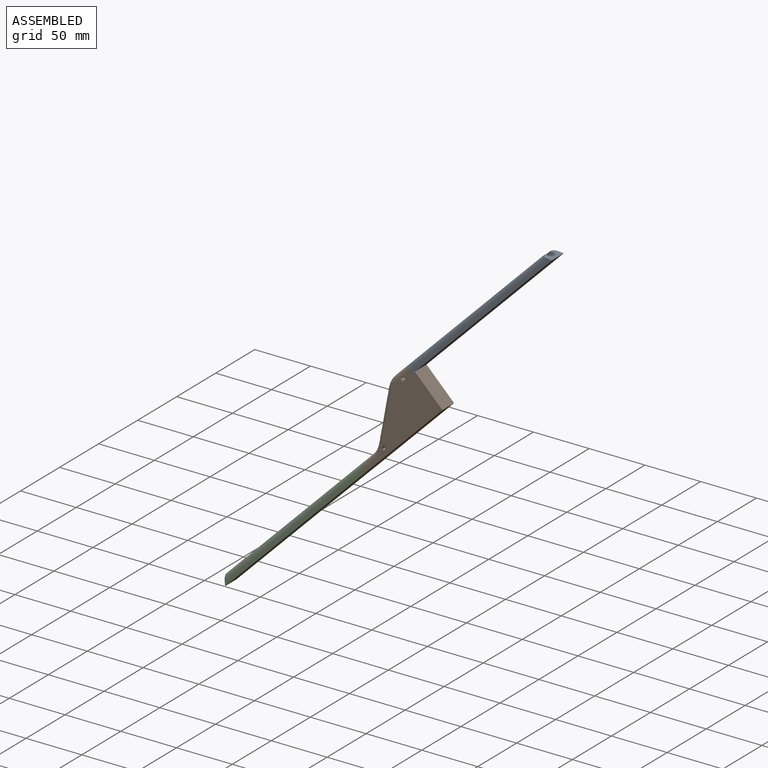
[diagram: assembled view]
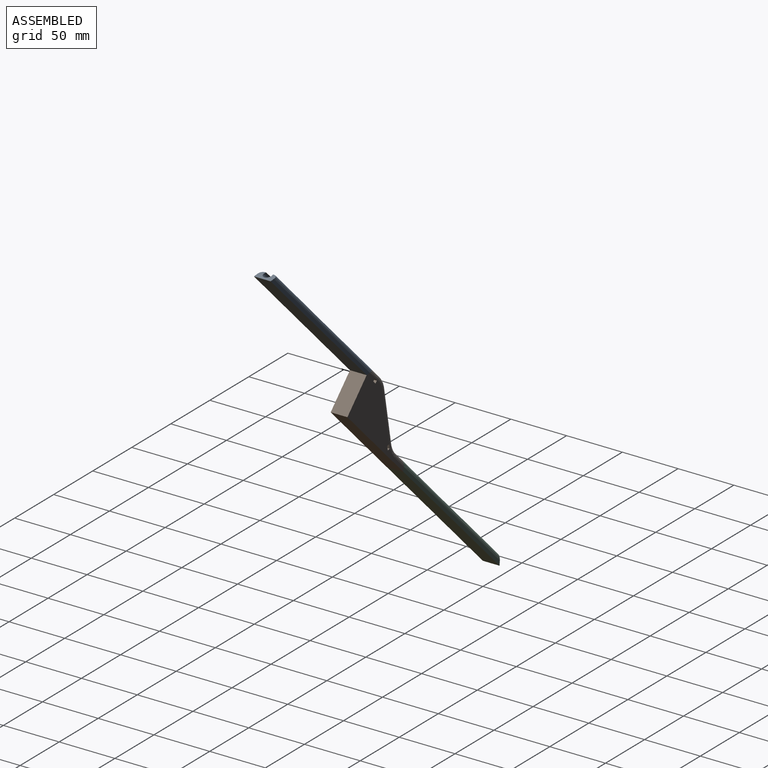
[diagram: assembled view, second angle]
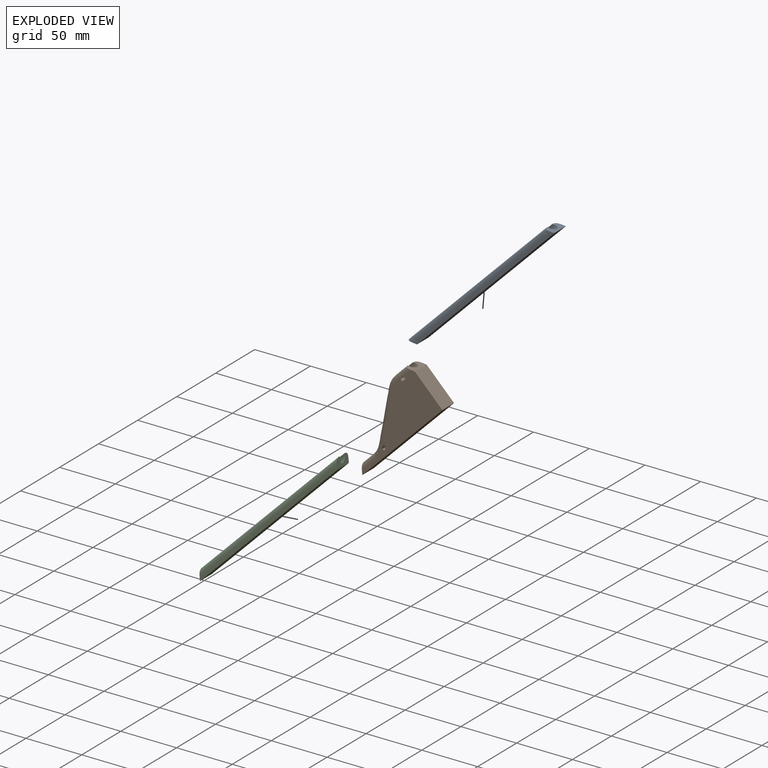
[diagram: exploded view]
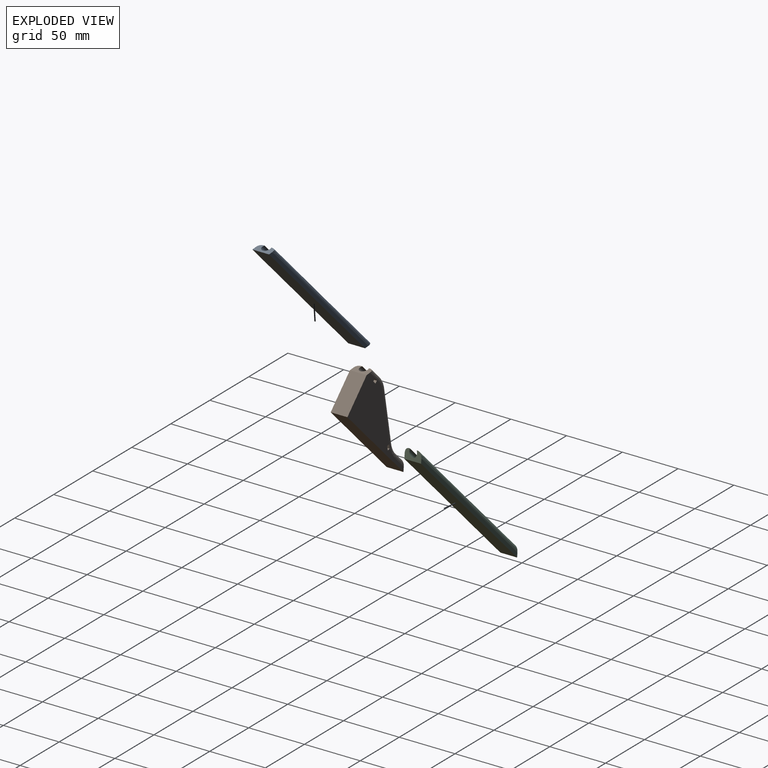
[diagram: exploded view, second angle]
ASSEMBLY  parts=3 mates=2
PART A: 10 faces, bbox 195.1x15x7.2 mm
  f0: plane 174x0.5mm, normal (0,0,1), area 86.6mm2, adj f5,f6,f7,f8
  f1: plane 176.64x3.15mm, normal (0,1,0), area 548.1mm2, adj f4,f6,f7,f9
  f2: plane 176.64x3.15mm, normal (0,-1,0), area 548.1mm2, adj f4,f6,f7,f8
  f3: plane 174x0.5mm, normal (0,0,1), area 86.6mm2, adj f5,f6,f7,f9
  f4: plane 174x15mm, normal (0,0,-1), area 2610mm2, adj f1,f2,f6,f7
  f5: cylinder r=3.45mm len=178.34mm, axis (-1,0,0), area 2504.5mm2, adj f0,f3,f6,f7
  f6: plane 15x7.15mm, normal (-0.77,0,-0.64), area 94mm2, adj f0,f1,f2,f3,f4,f5,f8,f9
  f7: plane 15x7.15mm, normal (0.77,0,0.64), area 94mm2, adj f0,f1,f2,f3,f4,f5,f8,f9
  f8: bspline ~195.09x4mm, area 1129.8mm2, adj f0,f2,f6,f7
  f9: bspline ~195.09x4mm, area 1129.8mm2, adj f1,f3,f6,f7
PART B: 41 faces, bbox 103.3x16.7x46.4 mm
  f0: plane 101.63x38.1mm, normal (0,-1,0), area 2050.8mm2, adj f7,f8,f19,f20,f26,f27,f28,f29
  f1: plane 101.63x38.1mm, normal (0,1,0), area 2050.8mm2, adj f7,f8,f19,f20,f21,f22,f23,f24
  f2: cylinder r=3.45mm len=17.53mm, axis (-1,0,0), area 212.2mm2, adj f5,f6,f9,f19,f37,f38,f39,f40
  f3: cylinder r=3.45mm len=43.49mm, axis (-0.82,0,-0.57), area 699.4mm2, adj f4,f6,f11,f13,f16,f18,f32,f34
  f4: torus R=19.5mm, axis (0,1,0), area 176.8mm2, adj f3,f10,f11,f18,f33,f34,f35
  f5: plane 13.88x0.51mm, normal (0,0,1), area 6.9mm2, adj f2,f6,f15,f19,f21
  f6: torus R=20.5mm, axis (0,-1,0), area 167.1mm2, adj f2,f3,f5,f9,f13,f14,f15,f16
  f7: plane 34.93x15mm, normal (1,0,0), area 523.9mm2, adj f0,f1,f8,f19
  f8: plane 101.6x15mm, normal (0,0,-1), area 1524mm2, adj f0,f1,f7,f20
  f9: plane 13.89x0.51mm, normal (0,0,1), area 6.9mm2, adj f2,f6,f14,f19,f26
  f10: cylinder r=3.45mm len=17.49mm, axis (-1,0,0), area 225.8mm2, adj f4,f11,f12,f17,f18,f20
  f11: cylinder r=20mm len=11.32mm, axis (0,-1,0), area 5.9mm2, adj f3,f4,f10,f12,f13,f29
  f12: plane 12.44x0.47mm, normal (0,0,1), area 5.8mm2, adj f10,f11,f20,f30
  f13: plane 40.65x27.91mm, normal (-0.57,0,0.82), area 24.6mm2, adj f3,f6,f11,f14,f28
  f14: cylinder r=20mm len=11.32mm, axis (0,-1,0), area 6.1mm2, adj f6,f9,f13,f27
  f15: cylinder r=20mm len=11.32mm, axis (0,-1,0), area 6.1mm2, adj f5,f6,f16,f22
  f16: plane 40.65x27.91mm, normal (-0.57,0,0.82), area 24.6mm2, adj f3,f6,f15,f18,f23
  f17: plane 12.44x0.47mm, normal (0,0,1), area 5.8mm2, adj f10,f18,f20,f25
  f18: cylinder r=20mm len=11.32mm, axis (0,-1,0), area 5.9mm2, adj f3,f4,f10,f16,f17,f24
  f19: plane 16.68x8.83mm, normal (0.77,0,0.64), area 94mm2, adj f0,f1,f2,f5,f7,f9,f21,f26
  f20: plane 16.68x8.83mm, normal (-0.77,0,0.64), area 94.4mm2, adj f0,f1,f8,f10,f12,f17,f25,f30
  f21: bspline ~18.1x4mm, area 101mm2, adj f1,f5,f19,f22
  f22: bspline ~11.32x6.81mm, area 72.8mm2, adj f1,f15,f21,f23
  f23: bspline ~42.91x31.2mm, area 320.1mm2, adj f1,f16,f22,f24
  f24: bspline ~13.58x7.51mm, area 83.4mm2, adj f1,f18,f23,f25
  f25: bspline ~16.59x4mm, area 91.7mm2, adj f1,f17,f20,f24
  f26: bspline ~18.1x4mm, area 101mm2, adj f0,f9,f19,f27
  f27: bspline ~11.32x6.81mm, area 72.8mm2, adj f0,f14,f26,f28
  f28: bspline ~42.91x31.2mm, area 320.1mm2, adj f0,f13,f27,f29
  f29: bspline ~13.58x7.51mm, area 83.4mm2, adj f0,f11,f28,f30
  f30: bspline ~16.59x4mm, area 91.7mm2, adj f0,f12,f20,f29
  f31: plane 15x3.32mm, normal (-0.56,0,0.83), area 60mm2, adj f0,f1,f32,f33
  f32: plane 15.01x2.09mm, normal (-0.83,0,-0.56), area 36.5mm2, adj f0,f1,f3,f31,f34,f35
  f33: plane 15.05x2.13mm, normal (0.83,0,0.56), area 36.5mm2, adj f0,f1,f4,f31,f34,f35
  f34: plane 5.82x3.34mm, normal (0.56,0,-0.83), area 23.1mm2, adj f1,f3,f4,f32,f33
  f35: plane 5.82x3.34mm, normal (0.56,0,-0.83), area 23.1mm2, adj f0,f3,f4,f32,f33
  f36: plane 15x4mm, normal (0,0,1), area 60mm2, adj f0,f1,f37,f38
  f37: plane 15x2.5mm, normal (1,0,0), area 36.2mm2, adj f0,f1,f2,f36,f39,f40
  f38: plane 15x2.5mm, normal (-1,0,0), area 36.2mm2, adj f0,f1,f2,f36,f39,f40
  f39: plane 5.65x4mm, normal (0,0,-1), area 22.6mm2, adj f1,f2,f37,f38
  f40: plane 5.65x4mm, normal (0,0,-1), area 22.6mm2, adj f0,f2,f37,f38
PART C: same geometry as A
PLACE A rot(axis=(0,-1,0),45deg) t=(58.48,42.67,67.13)mm
PLACE B rot(axis=(0,-1,0),45deg) t=(-24.65,50.17,-4.45)mm fixed
PLACE C rot(axis=(0.38,0,-0.92),180deg) t=(-107.46,42.67,-148.14)mm
MATE fastened C.f6 <-> B.f20  axis (1,0,0.09) through (-48.69,42.67,-81.66)mm
MATE fastened A.f6 <-> B.f19  axis (-0.09,0,-1) through (-8,42.67,8.35)mm
